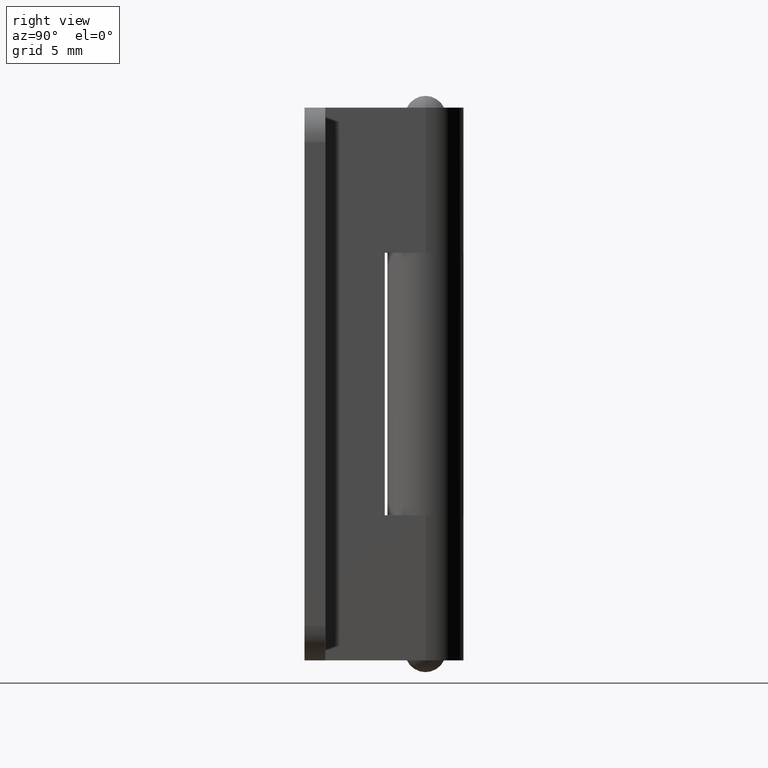
[diagram: clean part render]
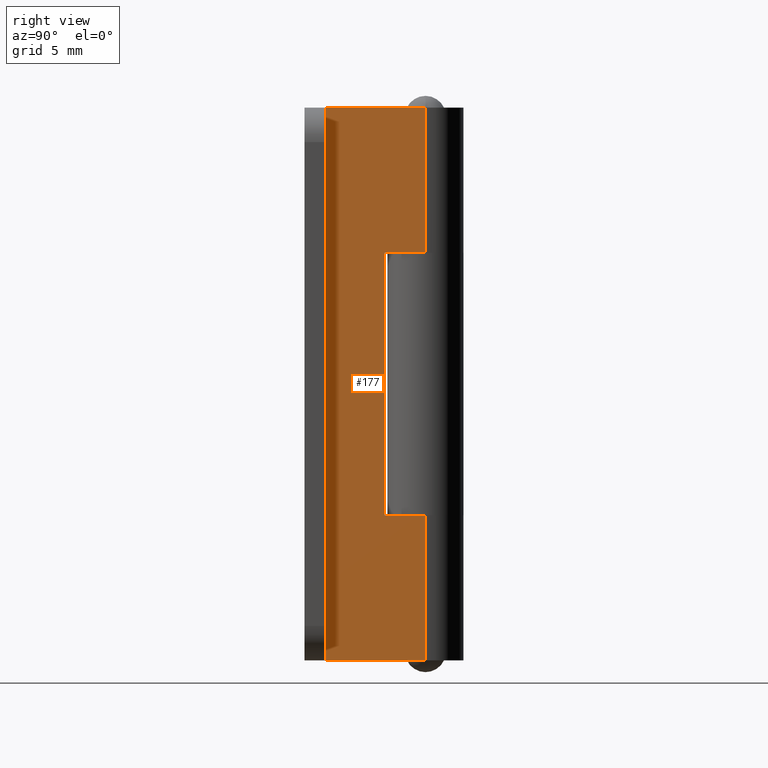
[diagram: same view with one face highlighted and labeled with its STEP entity id]
A machine part, right view. The second image highlights one B-rep face of the part: STEP entity #177.
In plain terms, the highlighted planar face has unit normal (1, 0, 0).
Its self-contained STEP definition (entity closure, byte-faithful):
#177=ADVANCED_FACE('',(#485),#484,.T.);
#484=PLANE('',#847);
#485=FACE_OUTER_BOUND('',#848,.T.);
#844=CARTESIAN_POINT('',(2.75000000000E+00,-2.40000000000E+01,7.25000400000E-01));
#845=DIRECTION('',(1.00000000000E+00,0.00000000000E+00,0.00000000000E+00));
#846=DIRECTION('',(0.00000000000E+00,0.00000000000E+00,-1.00000000000E+00));
#847=AXIS2_PLACEMENT_3D('',#844,#845,#846);
#848=EDGE_LOOP('',(#1085,#1086,#1087,#1088,#1089,#1090,#1091,#1092));
#1085=ORIENTED_EDGE('',*,*,#1273,.T.);
#1086=ORIENTED_EDGE('',*,*,#1274,.T.);
#1087=ORIENTED_EDGE('',*,*,#1275,.T.);
#1088=ORIENTED_EDGE('',*,*,#1276,.T.);
#1089=ORIENTED_EDGE('',*,*,#1277,.T.);
#1090=ORIENTED_EDGE('',*,*,#1278,.F.);
#1091=ORIENTED_EDGE('',*,*,#1279,.F.);
#1092=ORIENTED_EDGE('',*,*,#1280,.T.);
#1273=EDGE_CURVE('',#1798,#1799,#1800,.T.);
#1274=EDGE_CURVE('',#1799,#1806,#1807,.T.);
#1275=EDGE_CURVE('',#1806,#1813,#1814,.T.);
#1276=EDGE_CURVE('',#1813,#1820,#1821,.T.);
#1277=EDGE_CURVE('',#1820,#1827,#1828,.T.);
#1278=EDGE_CURVE('',#1834,#1827,#1835,.T.);
#1279=EDGE_CURVE('',#1841,#1834,#1842,.T.);
#1280=EDGE_CURVE('',#1841,#1798,#1848,.T.);
#1798=VERTEX_POINT('',#2444);
#1799=VERTEX_POINT('',#2445);
#1800=LINE('',#2446,#2447);
#1806=VERTEX_POINT('',#2449);
#1807=LINE('',#2450,#2451);
#1813=VERTEX_POINT('',#2453);
#1814=LINE('',#2454,#2455);
#1820=VERTEX_POINT('',#2457);
#1821=LINE('',#2458,#2459);
#1827=VERTEX_POINT('',#2461);
#1828=LINE('',#2462,#2463);
#1834=VERTEX_POINT('',#2465);
#1835=LINE('',#2466,#2467);
#1841=VERTEX_POINT('',#2469);
#1842=LINE('',#2470,#2471);
#1848=LINE('',#2473,#2474);
#2444=CARTESIAN_POINT('',(2.75000000000E+00,2.00000000000E+01,1.13686837722E-13));
#2445=CARTESIAN_POINT('',(2.75000000000E+00,9.50000000000E+00,1.13686837722E-13));
#2446=CARTESIAN_POINT('',(2.75000000000E+00,2.00000000000E+01,1.13686837722E-13));
#2447=VECTOR('',#2448,1.05000000000E+01);
#2448=DIRECTION('',(0.00000000000E+00,-1.00000000000E+00,0.00000000000E+00));
#2449=CARTESIAN_POINT('',(2.74999999999E+00,9.50000000000E+00,-2.95000399994E+00));
#2450=CARTESIAN_POINT('',(2.75000000000E+00,9.50000000000E+00,1.13686837722E-13));
#2451=VECTOR('',#2452,2.95000399994E+00);
#2452=DIRECTION('',(0.00000000000E+00,0.00000000000E+00,-1.00000000000E+00));
#2453=CARTESIAN_POINT('',(2.74999999999E+00,-9.50000000000E+00,-2.95000399994E+00));
#2454=CARTESIAN_POINT('',(2.75000000000E+00,9.50000000000E+00,-2.95000399994E+00));
#2455=VECTOR('',#2456,1.90000000000E+01);
#2456=DIRECTION('',(0.00000000000E+00,-1.00000000000E+00,-9.87046701683E-14));
#2457=CARTESIAN_POINT('',(2.75000000000E+00,-9.50000000000E+00,1.13686837722E-13));
#2458=CARTESIAN_POINT('',(2.75000000000E+00,-9.50000000000E+00,-2.95000399994E+00));
#2459=VECTOR('',#2460,2.95000399994E+00);
#2460=DIRECTION('',(0.00000000000E+00,0.00000000000E+00,1.00000000000E+00));
#2461=CARTESIAN_POINT('',(2.75000000000E+00,-2.00000000000E+01,1.13686837722E-13));
#2462=CARTESIAN_POINT('',(2.75000000000E+00,-9.50000000000E+00,1.13686837722E-13));
#2463=VECTOR('',#2464,1.05000000000E+01);
#2464=DIRECTION('',(0.00000000000E+00,-1.00000000000E+00,0.00000000000E+00));
#2465=CARTESIAN_POINT('',(2.75000000000E+00,-2.00000000000E+01,-7.25000400000E+00));
#2466=CARTESIAN_POINT('',(2.75000000000E+00,-2.00000000000E+01,-7.25000400000E+00));
#2467=VECTOR('',#2468,7.25000400000E+00);
#2468=DIRECTION('',(0.00000000000E+00,0.00000000000E+00,1.00000000000E+00));
#2469=CARTESIAN_POINT('',(2.75000000000E+00,2.00000000000E+01,-7.25000400000E+00));
#2470=CARTESIAN_POINT('',(2.75000000000E+00,2.00000000000E+01,-7.25000400000E+00));
#2471=VECTOR('',#2472,4.00000000000E+01);
#2472=DIRECTION('',(0.00000000000E+00,-1.00000000000E+00,0.00000000000E+00));
#2473=CARTESIAN_POINT('',(2.75000000000E+00,2.00000000000E+01,-7.25000400000E+00));
#2474=VECTOR('',#2475,7.25000400000E+00);
#2475=DIRECTION('',(0.00000000000E+00,0.00000000000E+00,1.00000000000E+00));